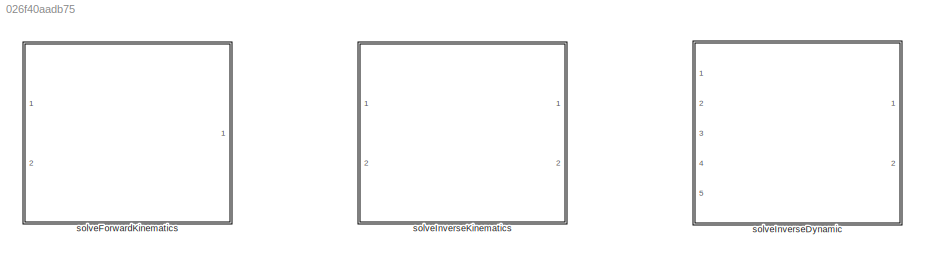
MODEL slx_026f40aadb75
KIND library
CONFIG AbsTol = auto
CONFIG EnableMultiTasking = off
CONFIG FixedStep = auto
CONFIG MaxStep = auto
CONFIG MinStep = auto
CONFIG RelTol = 1e-3
CONFIG SampleTimeConstraint = Unconstrained
CONFIG SolverName = VariableStepAuto
CONFIG StartTime = 0.0
CONFIG StopTime = 10.0
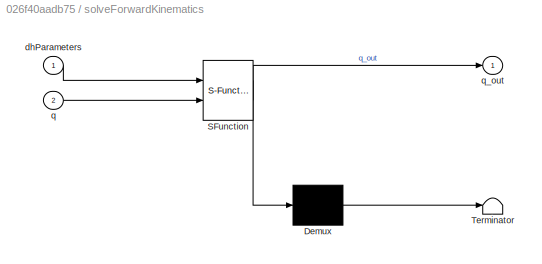
BLOCK [SubSystem] solveForwardKinematics
  ErrorFcn = Stateflow.Translate.translate
  PermitHierarchicalResolution = ExplicitOnly
  Ports = [2, 1]
  RequestExecContextInheritance = off
  SFBlockType = MATLAB Function
  TreatAsAtomicUnit = on
BLOCK [Demux] solveForwardKinematics/ Demux 
  Outputs = 1
  Ports = [1, 1]
BLOCK [S-Function] solveForwardKinematics/ SFunction 
  EnableBusSupport = on
  FunctionName = sf_sfun
  PortCounts = [2 2]
  Ports = [2, 2]
  SFcnIsStateOwnerBlock = off
  SFunctionDeploymentMode = off
  Tag = Stateflow S-Function 4
BLOCK [Terminator] solveForwardKinematics/ Terminator 
BLOCK [Inport] solveForwardKinematics/dhParameters
BLOCK [Inport] solveForwardKinematics/q
  Port = 2
BLOCK [Outport] solveForwardKinematics/q_out
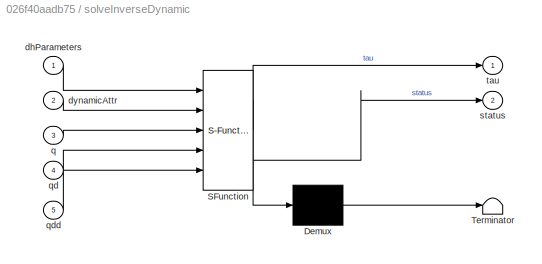
BLOCK [SubSystem] solveInverseDynamic
  ErrorFcn = Stateflow.Translate.translate
  PermitHierarchicalResolution = ExplicitOnly
  Ports = [5, 2]
  RequestExecContextInheritance = off
  SFBlockType = MATLAB Function
  TreatAsAtomicUnit = on
BLOCK [Demux] solveInverseDynamic/ Demux 
  Outputs = 1
  Ports = [1, 1]
BLOCK [S-Function] solveInverseDynamic/ SFunction 
  EnableBusSupport = on
  FunctionName = sf_sfun
  PortCounts = [5 3]
  Ports = [5, 3]
  SFcnIsStateOwnerBlock = off
  SFunctionDeploymentMode = off
  Tag = Stateflow S-Function 2
BLOCK [Terminator] solveInverseDynamic/ Terminator 
BLOCK [Inport] solveInverseDynamic/dhParameters
BLOCK [Inport] solveInverseDynamic/dynamicAttr
  Port = 2
BLOCK [Inport] solveInverseDynamic/q
  Port = 3
BLOCK [Inport] solveInverseDynamic/qd
  Port = 4
BLOCK [Inport] solveInverseDynamic/qdd
  Port = 5
BLOCK [Outport] solveInverseDynamic/status
  Port = 2
BLOCK [Outport] solveInverseDynamic/tau
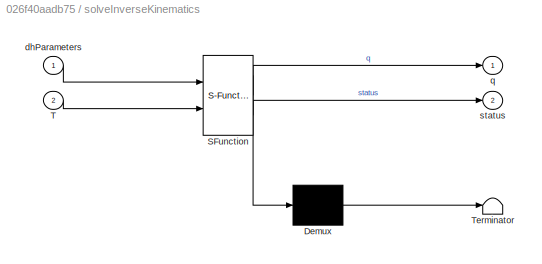
BLOCK [SubSystem] solveInverseKinematics
  ErrorFcn = Stateflow.Translate.translate
  PermitHierarchicalResolution = ExplicitOnly
  Ports = [2, 2]
  RequestExecContextInheritance = off
  SFBlockType = MATLAB Function
  TreatAsAtomicUnit = on
BLOCK [Demux] solveInverseKinematics/ Demux 
  Outputs = 1
  Ports = [1, 1]
BLOCK [S-Function] solveInverseKinematics/ SFunction 
  EnableBusSupport = on
  FunctionName = sf_sfun
  PortCounts = [2 3]
  Ports = [2, 3]
  SFcnIsStateOwnerBlock = off
  SFunctionDeploymentMode = off
  Tag = Stateflow S-Function 1
BLOCK [Terminator] solveInverseKinematics/ Terminator 
BLOCK [Inport] solveInverseKinematics/T
  Port = 2
BLOCK [Inport] solveInverseKinematics/dhParameters
BLOCK [Outport] solveInverseKinematics/q
BLOCK [Outport] solveInverseKinematics/status
  Port = 2
CHART solveInverseKinematics states=1 transitions=1
  STATE_LABEL 'eML_blk_kernel()'
  STATE_LABEL 'SCRIPT:\nfunction [q, status] = solveInverseKinematics(dhParameters, T)\ndim = size(T);\nif (dim(1) == 3 && dim(2) == 1) || ...\n        (dim(1) == 1 && dim(2) == 3)\n    % convert vector target pose to homogeneous transform\n    TT = [  eye(3, 3),      T(:);\n            zeros(1, 3),    1];\nelse \n    TT = T;\nend\ndhParams = struct2table(dhParameters);\n[q, status] = solver.solveInverseKinematics(dhParams,...<+9ch>'
CHART solveInverseDynamic states=1 transitions=1
  STATE_LABEL 'eML_blk_kernel()'
  STATE_LABEL 'SCRIPT:\nfunction [tau, status] = solveInverseDynamic(dhParameters, dynamicAttr, q, qd, qdd)\n\ndhParams = struct2table(dhParameters);\n[tau, status] = solver.solveInverseDynamic(dhParams, ...\n    dynamicAttr.M, ...\n    dynamicAttr.I, ...\n    dynamicAttr.Fext, ...\n    q, qd, qdd);\n\nend'
CHART solveForwardKinematics states=1 transitions=1
  STATE_LABEL 'eML_blk_kernel()'
  STATE_LABEL 'SCRIPT:\nfunction q_out = solveForwardKinematics(dhParameters, q)\ndhParams = struct2table(dhParameters);\ncompleteSolution = true;\nq_out = solver.solveForwardKinematics(dhParams, q, completeSolution);\nend'
CHART  states=0 transitions=0
CHART  states=0 transitions=0
CHART  states=0 transitions=0
